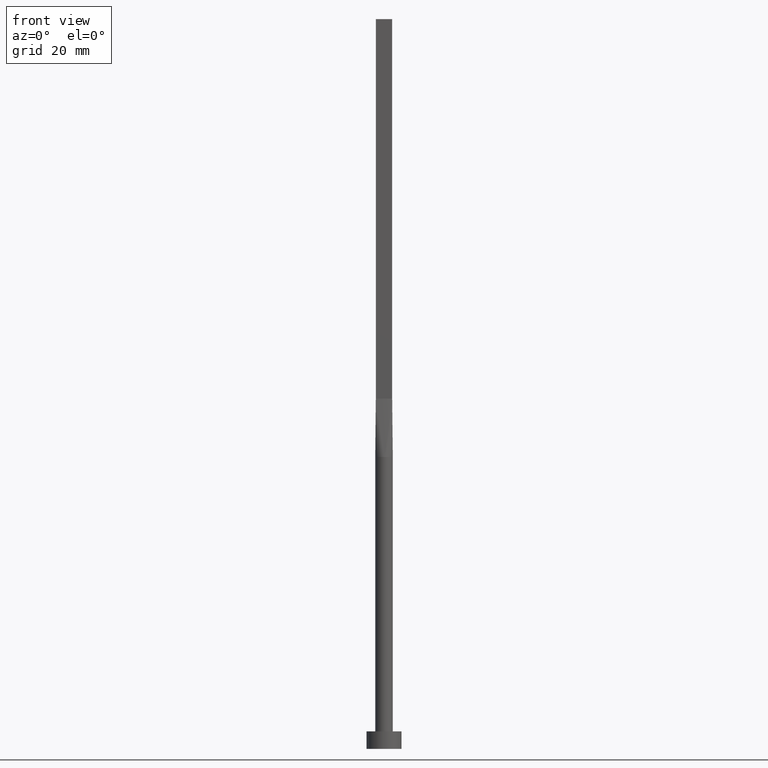
[diagram: clean part render]
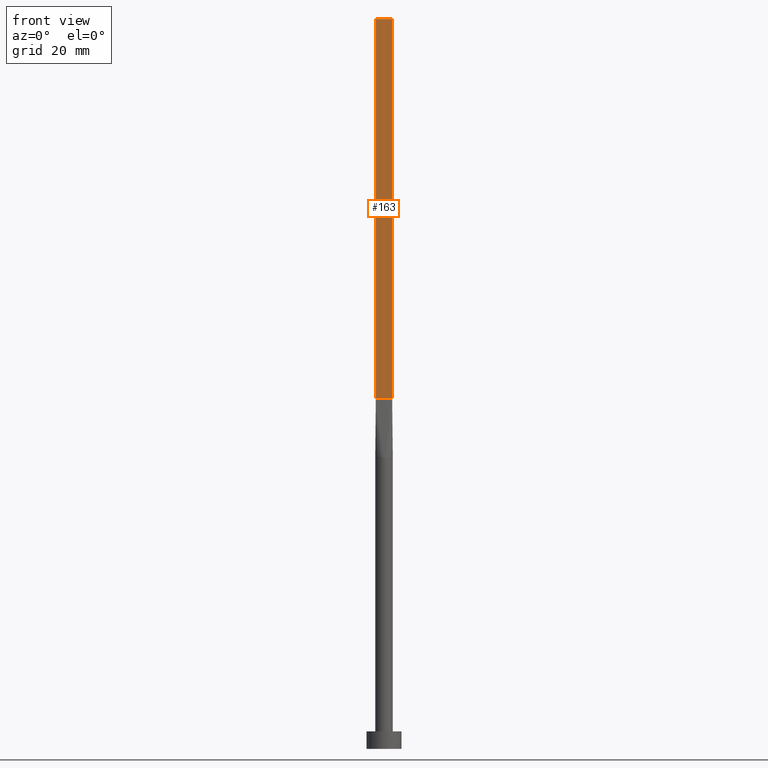
[diagram: same view with one face highlighted and labeled with its STEP entity id]
A machine part, front view. The second image highlights one B-rep face of the part: STEP entity #163.
In plain terms, the highlighted planar face has unit normal (0, 1, -0).
Its self-contained STEP definition (entity closure, byte-faithful):
#10 = PLANE ( 'NONE',  #75 ) ;
#13 = DIRECTION ( 'NONE',  ( -1.000000000000000000, 7.744301232039316681E-17, 0.000000000000000000 ) ) ;
#43 = CARTESIAN_POINT ( 'NONE',  ( -1.399999999999999911, -0.4999999999999995559, 125.0000000000000000 ) ) ;
#49 = LINE ( 'NONE', #316, #309 ) ;
#50 = FACE_OUTER_BOUND ( 'NONE', #557, .T. ) ;
#74 = VECTOR ( 'NONE', #270, 1000.000000000000000 ) ;
#75 = AXIS2_PLACEMENT_3D ( 'NONE', #451, #408, #13 ) ;
#81 = CARTESIAN_POINT ( 'NONE',  ( -1.399999999999999911, -0.4999999999999995559, 60.00000000000000711 ) ) ;
#86 = ORIENTED_EDGE ( 'NONE', *, *, #442, .T. ) ;
#89 = ORIENTED_EDGE ( 'NONE', *, *, #448, .F. ) ;
#101 = DIRECTION ( 'NONE',  ( -0.000000000000000000, -0.000000000000000000, -1.000000000000000000 ) ) ;
#102 = VECTOR ( 'NONE', #440, 1000.000000000000000 ) ;
#134 = DIRECTION ( 'NONE',  ( -0.000000000000000000, -0.000000000000000000, -1.000000000000000000 ) ) ;
#148 = CARTESIAN_POINT ( 'NONE',  ( 1.399999999999999911, -0.4999999999999997780, 60.00000000000000711 ) ) ;
#156 = ORIENTED_EDGE ( 'NONE', *, *, #560, .F. ) ;
#163 = ADVANCED_FACE ( 'NONE', ( #50 ), #10, .F. ) ;
#184 = VECTOR ( 'NONE', #134, 1000.000000000000000 ) ;
#197 = VERTEX_POINT ( 'NONE', #148 ) ;
#232 = LINE ( 'NONE', #402, #74 ) ;
#266 = CARTESIAN_POINT ( 'NONE',  ( 1.399999999999999911, -0.4999999999999997780, 125.0000000000000000 ) ) ;
#270 = DIRECTION ( 'NONE',  ( 1.000000000000000000, -7.744301232039317914E-17, 0.000000000000000000 ) ) ;
#298 = VERTEX_POINT ( 'NONE', #375 ) ;
#309 = VECTOR ( 'NONE', #101, 1000.000000000000000 ) ;
#311 = LINE ( 'NONE', #81, #102 ) ;
#316 = CARTESIAN_POINT ( 'NONE',  ( 1.399999999999999911, -0.4999999999999997780, 125.0000000000000000 ) ) ;
#367 = LINE ( 'NONE', #43, #184 ) ;
#375 = CARTESIAN_POINT ( 'NONE',  ( -1.399999999999999911, -0.4999999999999995559, 60.00000000000000711 ) ) ;
#386 = CARTESIAN_POINT ( 'NONE',  ( -1.399999999999999911, -0.4999999999999995559, 125.0000000000000000 ) ) ;
#402 = CARTESIAN_POINT ( 'NONE',  ( -1.399999999999999911, -0.4999999999999995559, 125.0000000000000000 ) ) ;
#403 = VERTEX_POINT ( 'NONE', #266 ) ;
#408 = DIRECTION ( 'NONE',  ( 7.744301232039316681E-17, 1.000000000000000000, -0.000000000000000000 ) ) ;
#410 = VERTEX_POINT ( 'NONE', #386 ) ;
#440 = DIRECTION ( 'NONE',  ( 1.000000000000000000, -7.744301232039317914E-17, 0.000000000000000000 ) ) ;
#442 = EDGE_CURVE ( 'NONE', #298, #197, #311, .T. ) ;
#448 = EDGE_CURVE ( 'NONE', #410, #403, #232, .T. ) ;
#451 = CARTESIAN_POINT ( 'NONE',  ( -1.399999999999999911, -0.4999999999999995559, 125.0000000000000000 ) ) ;
#468 = EDGE_CURVE ( 'NONE', #410, #298, #367, .T. ) ;
#557 = EDGE_LOOP ( 'NONE', ( #86, #156, #89, #580 ) ) ;
#560 = EDGE_CURVE ( 'NONE', #403, #197, #49, .T. ) ;
#580 = ORIENTED_EDGE ( 'NONE', *, *, #468, .T. ) ;